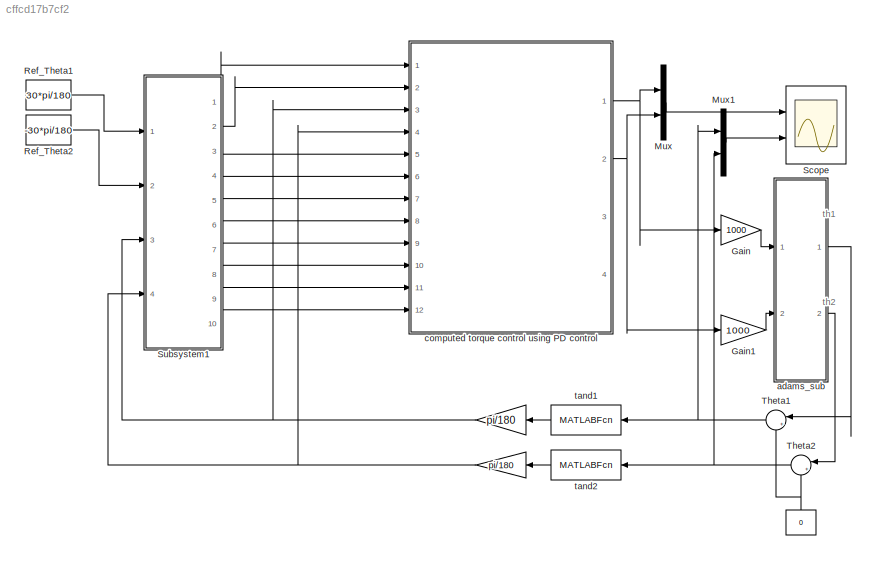
MODEL slx_cffcd17b7cf2
KIND model
CONFIG AbsTol = auto
CONFIG FixedStep = auto
CONFIG MaxStep = auto
CONFIG MinStep = auto
CONFIG RelTol = 1e-3
CONFIG SampleTimeConstraint = Unconstrained
CONFIG Solver = ode45
CONFIG SolverMode = Auto
CONFIG SolverName = ode45
CONFIG StartTime = 0.0
CONFIG StopTime = 5
BLOCK [Constant]  
  SampleTime = -1
  Value = 0
BLOCK [Gain]   
  Gain = pi/180
  OutDataTypeStr = Inherit: Inherit via internal rule
  ParamDataTypeStr = Inherit: Inherit via internal rule
  SaturateOnIntegerOverflow = off
BLOCK [Gain]    
  Gain = pi/180
  OutDataTypeStr = Inherit: Inherit via internal rule
  ParamDataTypeStr = Inherit: Inherit via internal rule
  SaturateOnIntegerOverflow = off
BLOCK [Gain] Gain
  Gain = 1000
  OutDataTypeStr = Inherit: Inherit via internal rule
  ParamDataTypeStr = Inherit: Inherit via internal rule
  SaturateOnIntegerOverflow = off
BLOCK [Gain] Gain1
  Gain = 1000
  OutDataTypeStr = Inherit: Inherit via internal rule
  ParamDataTypeStr = Inherit: Inherit via internal rule
  SaturateOnIntegerOverflow = off
BLOCK [Mux] Mux
  DisplayOption = bar
  Inputs = 2
  Ports = [2, 1]
BLOCK [Mux] Mux1
  DisplayOption = bar
  Inputs = 2
  Ports = [2, 1]
BLOCK [Constant] Ref_Theta1
  SampleTime = -1
  Value = 30*pi/180
BLOCK [Constant] Ref_Theta2
  SampleTime = -1
  Value = -30*pi/180
BLOCK [Scope] Scope
  NumInputPorts = 2
  Ports = [2]
  ScopeSpecificationString = Simulink.scopes.TimeScopeBlockCfg('CurrentConfiguration', extmgr.ConfigurationSet(extmgr.Configuration('Core','General UI',true),extmgr.Configuration('Core','Source UI',true),extmgr.Configuration('Sources','WiredSimulink',true,'DataLoggingVariableName','ScopeData2','DataLoggingLimitDataPoints',true,'DataLoggingSaveFormat','Array','DataLoggingDecimation','1','DataLoggingDecimateData',true),extmgr.C...<+2485ch>
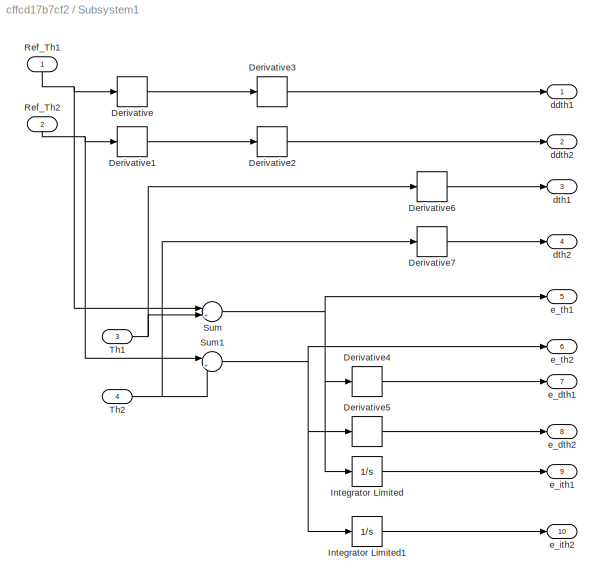
BLOCK [SubSystem] Subsystem1
  Ports = [4, 10]
  RequestExecContextInheritance = off
  Variant = off
BLOCK [Derivative] Subsystem1/Derivative
BLOCK [Derivative] Subsystem1/Derivative1
BLOCK [Derivative] Subsystem1/Derivative2
BLOCK [Derivative] Subsystem1/Derivative3
BLOCK [Derivative] Subsystem1/Derivative4
  CoefficientInTFapproximation = 120
BLOCK [Derivative] Subsystem1/Derivative5
  CoefficientInTFapproximation = 120
BLOCK [Derivative] Subsystem1/Derivative6
BLOCK [Derivative] Subsystem1/Derivative7
BLOCK [Integrator] Subsystem1/Integrator Limited
  LimitOutput = on
  Ports = [1, 1]
BLOCK [Integrator] Subsystem1/Integrator Limited1
  LimitOutput = on
  Ports = [1, 1]
BLOCK [Inport] Subsystem1/Ref_Th1
  IconDisplay = Port number
BLOCK [Inport] Subsystem1/Ref_Th2
  IconDisplay = Port number
  Port = 2
BLOCK [Sum] Subsystem1/Sum
  IconShape = round
  InputSameDT = off
  Inputs = |+-
  OutDataTypeStr = Inherit: Inherit via internal rule
  Ports = [2, 1]
  SaturateOnIntegerOverflow = off
BLOCK [Sum] Subsystem1/Sum1
  IconShape = round
  InputSameDT = off
  Inputs = |+-
  OutDataTypeStr = Inherit: Inherit via internal rule
  Ports = [2, 1]
  SaturateOnIntegerOverflow = off
BLOCK [Inport] Subsystem1/Th1
  IconDisplay = Port number
  Port = 3
BLOCK [Inport] Subsystem1/Th2
  IconDisplay = Port number
  Port = 4
BLOCK [Outport] Subsystem1/ddth1
  IconDisplay = Port number
BLOCK [Outport] Subsystem1/ddth2
  IconDisplay = Port number
  Port = 2
BLOCK [Outport] Subsystem1/dth1
  IconDisplay = Port number
  Port = 3
BLOCK [Outport] Subsystem1/dth2
  IconDisplay = Port number
  Port = 4
BLOCK [Outport] Subsystem1/e_dth1
  IconDisplay = Port number
  Port = 7
BLOCK [Outport] Subsystem1/e_dth2
  IconDisplay = Port number
  Port = 8
BLOCK [Outport] Subsystem1/e_ith1
  IconDisplay = Port number
  Port = 9
BLOCK [Outport] Subsystem1/e_ith2
  IconDisplay = Port number
  Port = 10
BLOCK [Outport] Subsystem1/e_th1
  IconDisplay = Port number
  Port = 5
BLOCK [Outport] Subsystem1/e_th2
  IconDisplay = Port number
  Port = 6
BLOCK [Sum] Theta1
  IconShape = round
  InputSameDT = off
  Inputs = |+-
  OutDataTypeStr = Inherit: Inherit via internal rule
  Ports = [2, 1]
  SaturateOnIntegerOverflow = off
BLOCK [Sum] Theta2
  IconShape = round
  InputSameDT = off
  Inputs = |+-
  OutDataTypeStr = Inherit: Inherit via internal rule
  Ports = [2, 1]
  SaturateOnIntegerOverflow = off
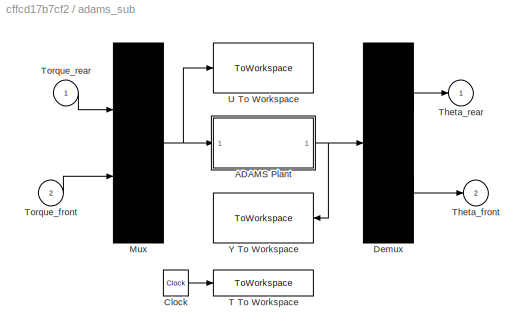
BLOCK [SubSystem] adams_sub
  Ports = [2, 2]
  RequestExecContextInheritance = off
  ShowPortLabels = none
  Variant = off
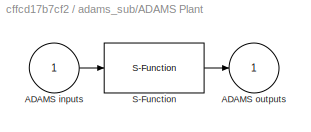
BLOCK [SubSystem] adams_sub/ADAMS Plant
  InitFcn = clear mex
  LoadFcn = %check based on dialog box setting for when setting by popup menu                                             \nif exist('ADAMS_solver_type')                                                                                 \n  if strcmp(ADAMS_solver_type,'C++')                                                                          \n    set_param(gcb,'exetyp','C++');                                 ...<+3488ch>
  OpenFcn = open_system(gcb,'mask')                                                                                                                          \nif not(exist('set_some_params_states'))                                                                                                          \n                                                                                                            ...<+625ch>
  Ports = [1, 1]
  RequestExecContextInheritance = off
  Variant = off
BLOCK [Inport] adams_sub/ADAMS Plant/ADAMS inputs
  IconDisplay = Port number
BLOCK [Outport] adams_sub/ADAMS Plant/ADAMS outputs
  IconDisplay = Port number
  InitialOutput = 0
BLOCK [S-Function] adams_sub/ADAMS Plant/S-Function
  EnableBusSupport = off
  FunctionName = adams_plant
  Parameters = exevie,exesol,stat,outfil,nampre,o_rate,nam_in,namout,dft,modsim,modani,dt_out,inicmd,exetyp,comtyp,ada_host, workdir,pin_interp_order,pout_extrap_order,pin_extrap_order,pout_interp_order,simulink_lead_cosim
  Ports = [1, 1]
  SFunctionDeploymentMode = off
  StopFcn = clear mex
BLOCK [Clock] adams_sub/Clock
BLOCK [Demux] adams_sub/Demux
  Outputs = 2
  Ports = [1, 2]
BLOCK [Mux] adams_sub/Mux
  Inputs = 2
  Ports = [2, 1]
BLOCK [ToWorkspace] adams_sub/T To Workspace
  MaxDataPoints = 100000
  Ports = [1]
  VariableName = ADAMS_tout
BLOCK [Outport] adams_sub/Theta_front
  IconDisplay = Port number
  Port = 2
BLOCK [Outport] adams_sub/Theta_rear 
  IconDisplay = Port number
BLOCK [Inport] adams_sub/Torque_front
  IconDisplay = Port number
  Port = 2
BLOCK [Inport] adams_sub/Torque_rear 
  IconDisplay = Port number
BLOCK [ToWorkspace] adams_sub/U To Workspace
  MaxDataPoints = 100000
  Ports = [1]
  VariableName = ADAMS_uout
BLOCK [ToWorkspace] adams_sub/Y To Workspace
  MaxDataPoints = 100000
  Ports = [1]
  VariableName = ADAMS_yout
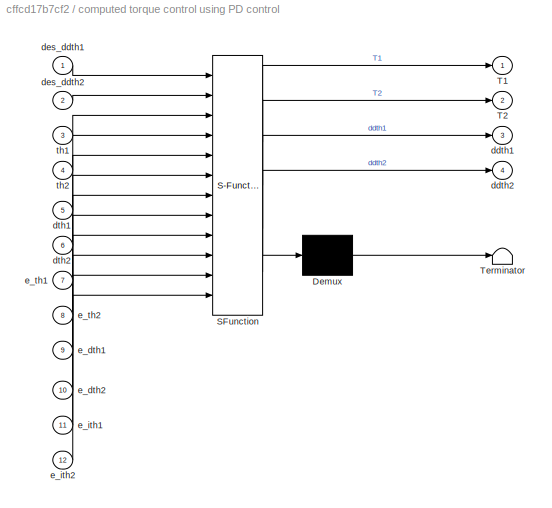
BLOCK [SubSystem] computed torque control using PD control
  ErrorFcn = Stateflow.Translate.translate
  PermitHierarchicalResolution = ExplicitOnly
  Ports = [12, 4]
  RequestExecContextInheritance = off
  SFBlockType = MATLAB Function
  TreatAsAtomicUnit = on
  Variant = off
BLOCK [Demux] computed torque control using PD control/ Demux 
  Outputs = 1
  Ports = [1, 1]
BLOCK [S-Function] computed torque control using PD control/ SFunction 
  EnableBusSupport = on
  FunctionName = sf_sfun
  PortCounts = [12 5]
  Ports = [12, 5]
  SFunctionDeploymentMode = off
  Tag = Stateflow S-Function computedTorquePD 1
BLOCK [Terminator] computed torque control using PD control/ Terminator 
BLOCK [Outport] computed torque control using PD control/T1
  IconDisplay = Port number
BLOCK [Outport] computed torque control using PD control/T2
  IconDisplay = Port number
  Port = 2
BLOCK [Outport] computed torque control using PD control/ddth1
  IconDisplay = Port number
  Port = 3
BLOCK [Outport] computed torque control using PD control/ddth2
  IconDisplay = Port number
  Port = 4
BLOCK [Inport] computed torque control using PD control/des_ddth1
  IconDisplay = Port number
BLOCK [Inport] computed torque control using PD control/des_ddth2
  IconDisplay = Port number
  Port = 2
BLOCK [Inport] computed torque control using PD control/dth1
  IconDisplay = Port number
  Port = 5
BLOCK [Inport] computed torque control using PD control/dth2
  IconDisplay = Port number
  Port = 6
BLOCK [Inport] computed torque control using PD control/e_dth1
  IconDisplay = Port number
  Port = 9
BLOCK [Inport] computed torque control using PD control/e_dth2
  IconDisplay = Port number
  Port = 10
BLOCK [Inport] computed torque control using PD control/e_ith1
  IconDisplay = Port number
  Port = 11
BLOCK [Inport] computed torque control using PD control/e_ith2
  IconDisplay = Port number
  Port = 12
BLOCK [Inport] computed torque control using PD control/e_th1
  IconDisplay = Port number
  Port = 7
BLOCK [Inport] computed torque control using PD control/e_th2
  IconDisplay = Port number
  Port = 8
BLOCK [Inport] computed torque control using PD control/th1
  IconDisplay = Port number
  Port = 3
BLOCK [Inport] computed torque control using PD control/th2
  IconDisplay = Port number
  Port = 4
BLOCK [MATLABFcn] tand1
  MATLABFcn = wrapTo180
  Ports = [1, 1]
BLOCK [MATLABFcn] tand2
  MATLABFcn = wrapTo180
  Ports = [1, 1]
ANNOTATION (root): th1
ANNOTATION (root): th2
NET    :1 -> Subsystem1:3, computed torque control using PD control:3
NET   :1 -> Subsystem1:4, computed torque control using PD control:4
NET  :1 -> Theta1:2, Theta2:2
LINE Gain1:1 -> adams_sub:2
LINE Gain:1 -> adams_sub:1
LINE Mux1:1 -> Scope:2
LINE Mux:1 -> Scope:1
LINE Ref_Theta1:1 -> Subsystem1:1
LINE Ref_Theta2:1 -> Subsystem1:2
LINE Subsystem1/Derivative1:1 -> Subsystem1/Derivative2:1
LINE Subsystem1/Derivative2:1 -> Subsystem1/ddth2:1
LINE Subsystem1/Derivative3:1 -> Subsystem1/ddth1:1
LINE Subsystem1/Derivative4:1 -> Subsystem1/e_dth1:1
LINE Subsystem1/Derivative5:1 -> Subsystem1/e_dth2:1
LINE Subsystem1/Derivative6:1 -> Subsystem1/dth1:1
LINE Subsystem1/Derivative7:1 -> Subsystem1/dth2:1
LINE Subsystem1/Derivative:1 -> Subsystem1/Derivative3:1
LINE Subsystem1/Integrator Limited1:1 -> Subsystem1/e_ith2:1
LINE Subsystem1/Integrator Limited:1 -> Subsystem1/e_ith1:1
NET Subsystem1/Ref_Th1:1 -> Subsystem1/Derivative:1, Subsystem1/Sum:1
NET Subsystem1/Ref_Th2:1 -> Subsystem1/Derivative1:1, Subsystem1/Sum1:1
NET Subsystem1/Sum1:1 -> Subsystem1/Derivative5:1, Subsystem1/Integrator Limited1:1, Subsystem1/e_th2:1
NET Subsystem1/Sum:1 -> Subsystem1/Derivative4:1, Subsystem1/Integrator Limited:1, Subsystem1/e_th1:1
NET Subsystem1/Th1:1 -> Subsystem1/Derivative6:1, Subsystem1/Sum:2
NET Subsystem1/Th2:1 -> Subsystem1/Derivative7:1, Subsystem1/Sum1:2
LINE Subsystem1:1 -> computed torque control using PD control:1
LINE Subsystem1:10 -> computed torque control using PD control:12
LINE Subsystem1:2 -> computed torque control using PD control:2
LINE Subsystem1:3 -> computed torque control using PD control:5
LINE Subsystem1:4 -> computed torque control using PD control:6
LINE Subsystem1:5 -> computed torque control using PD control:7
LINE Subsystem1:6 -> computed torque control using PD control:8
LINE Subsystem1:7 -> computed torque control using PD control:9
LINE Subsystem1:8 -> computed torque control using PD control:10
LINE Subsystem1:9 -> computed torque control using PD control:11
NET Theta1:1 -> Mux1:1, tand1:1
NET Theta2:1 -> Mux1:2, tand2:1
LINE adams_sub/ADAMS Plant/ADAMS inputs:1 -> adams_sub/ADAMS Plant/S-Function:1
LINE adams_sub/ADAMS Plant/S-Function:1 -> adams_sub/ADAMS Plant/ADAMS outputs:1
NET adams_sub/ADAMS Plant:1 -> adams_sub/Demux:1, adams_sub/Y To Workspace:1
LINE adams_sub/Clock:1 -> adams_sub/T To Workspace:1
LINE adams_sub/Demux:1 -> adams_sub/Theta_rear :1
LINE adams_sub/Demux:2 -> adams_sub/Theta_front:1
NET adams_sub/Mux:1 -> adams_sub/ADAMS Plant:1, adams_sub/U To Workspace:1
LINE adams_sub/Torque_front:1 -> adams_sub/Mux:2
LINE adams_sub/Torque_rear :1 -> adams_sub/Mux:1
LINE adams_sub:1 -> Theta1:1
LINE adams_sub:2 -> Theta2:1
NET computed torque control using PD control:1 -> Gain:1, Mux:1
NET computed torque control using PD control:2 -> Gain1:1, Mux:2
LINE tand1:1 ->    :1
LINE tand2:1 ->   :1
note: NET lines group one-source signal fan-out (src -> all destinations, sorted); 1:1 wires keep LINE
CHART computed torque control using PD control states=1 transitions=1
  STATE_LABEL 'eML_blk_kernel()'
  STATE_LABEL 'SCRIPT:\nfunction [T1,T2,ddth1,ddth2]    = fcn1(des_ddth1,des_ddth2,th1,th2,...\n                                        dth1,dth2,e_th1,e_th2,e_dth1,...\n                                        e_dth2,e_ith1,e_ith2)\n%computed torque control method PD control\na1 = 0.35 ; a2 = 0.35; m1 = 0.1287; m2 = 3.1024; g = 9.8;\n\nKp = 100*diag([1 1],0);\nKd = 0*diag([1 1],0);             %for critical damping & Fi...<+733ch>'
